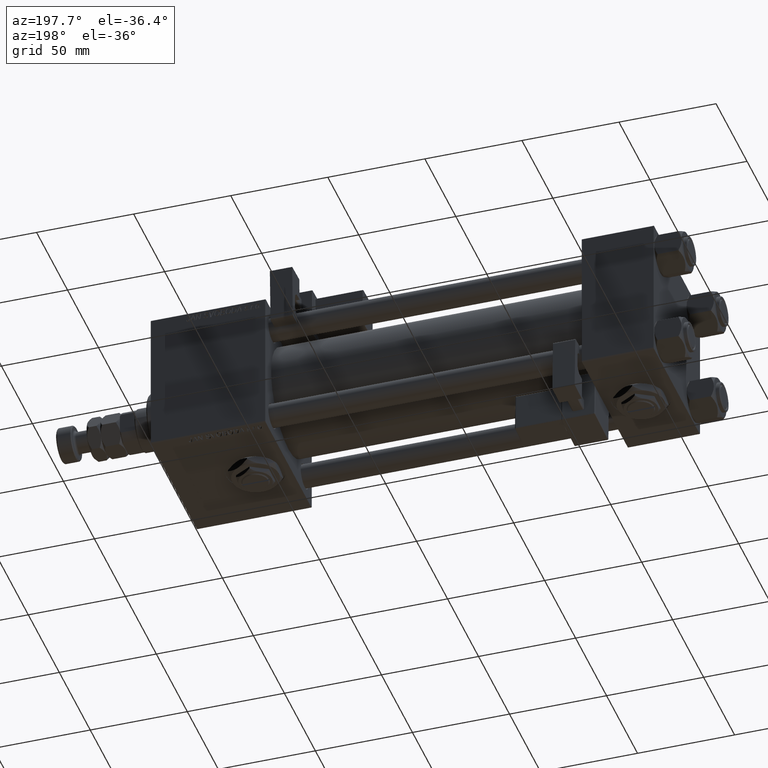
[diagram: clean part render]
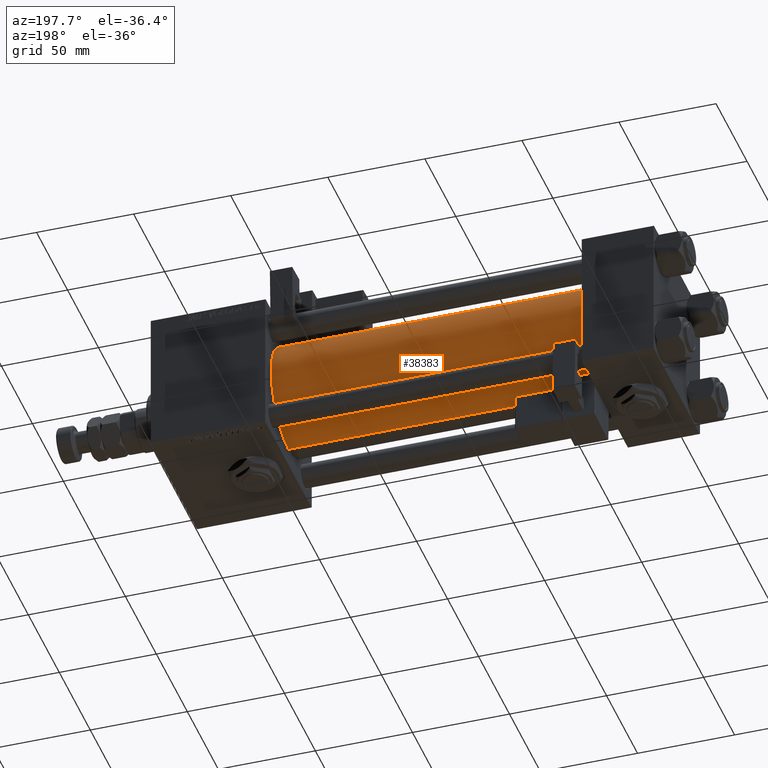
[diagram: same view with one face highlighted and labeled with its STEP entity id]
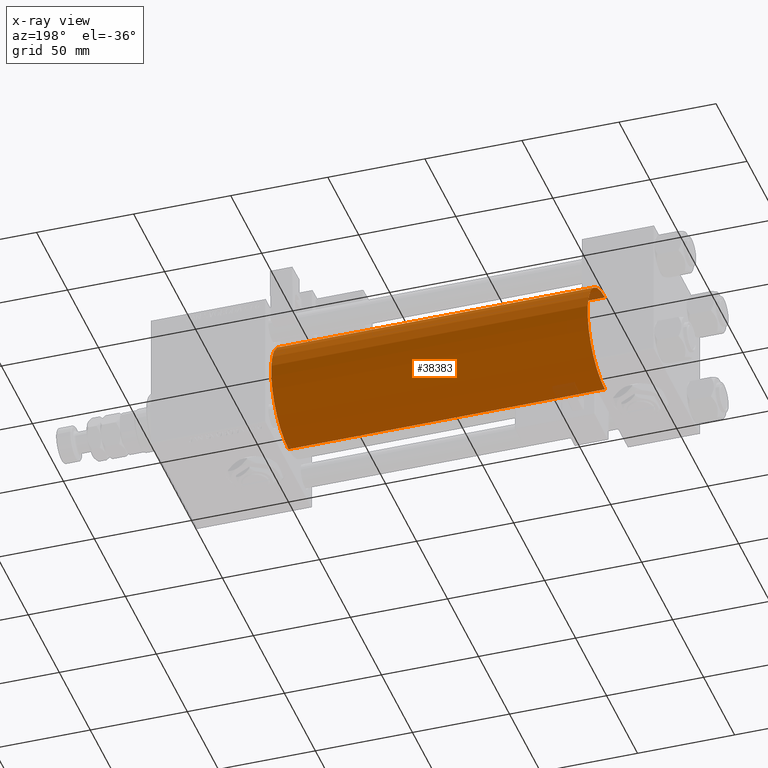
[diagram: x-ray of the same camera — body ghosted, the highlighted face saturated]
A machine part, auxiliary view. The second image highlights one B-rep face of the part: STEP entity #38383.
The next image is the same camera in x-ray: the body ghosted, the highlighted face saturated — about 1% of this face is hidden behind the body in this view.
In plain terms, the highlighted cylindrical surface (partial cylindrical patch) has radius 28 mm, axis along (-1, -0, -0).
Its self-contained STEP definition (entity closure, byte-faithful):
#398 = CARTESIAN_POINT ( 'NONE',  ( 200.0000000000000000, -2.602085213965210642E-15, 28.00000000000000000 ) ) ;
#3461 = VECTOR ( 'NONE', #13063, 1000.000000000000000 ) ;
#4946 = ORIENTED_EDGE ( 'NONE', *, *, #30645, .F. ) ;
#5123 = DIRECTION ( 'NONE',  ( -1.000000000000000000, -0.000000000000000000, -0.000000000000000000 ) ) ;
#6062 = EDGE_CURVE ( 'NONE', #31333, #9803, #8519, .T. ) ;
#6454 = DIRECTION ( 'NONE',  ( -1.000000000000000000, -0.000000000000000000, -0.000000000000000000 ) ) ;
#7013 = CARTESIAN_POINT ( 'NONE',  ( 37.00000000000000711, -2.602085213965210642E-15, 28.00000000000000000 ) ) ;
#7200 = CARTESIAN_POINT ( 'NONE',  ( 37.00000000000000711, -2.602085213965210642E-15, 0.000000000000000000 ) ) ;
#8519 = LINE ( 'NONE', #43209, #3461 ) ;
#9289 = EDGE_CURVE ( 'NONE', #29853, #49390, #23002, .T. ) ;
#9803 = VERTEX_POINT ( 'NONE', #7013 ) ;
#9861 = CARTESIAN_POINT ( 'NONE',  ( 37.00000000000000711, 8.269258236473784371E-16, -28.00000000000000000 ) ) ;
#9999 = CIRCLE ( 'NONE', #31787, 28.00000000000000000 ) ;
#10406 = CARTESIAN_POINT ( 'NONE',  ( 200.0000000000000000, -2.602085213965210642E-15, 0.000000000000000000 ) ) ;
#10713 = VECTOR ( 'NONE', #5123, 1000.000000000000000 ) ;
#13063 = DIRECTION ( 'NONE',  ( -1.000000000000000000, -0.000000000000000000, -0.000000000000000000 ) ) ;
#15538 = CARTESIAN_POINT ( 'NONE',  ( 200.0000000000000000, -2.602085213965210642E-15, 0.000000000000000000 ) ) ;
#17787 = ORIENTED_EDGE ( 'NONE', *, *, #9289, .T. ) ;
#18149 = EDGE_CURVE ( 'NONE', #49390, #9803, #34698, .T. ) ;
#18630 = DIRECTION ( 'NONE',  ( 0.000000000000000000, 0.000000000000000000, -1.000000000000000000 ) ) ;
#23002 = LINE ( 'NONE', #31538, #10713 ) ;
#25324 = ORIENTED_EDGE ( 'NONE', *, *, #18149, .T. ) ;
#28890 = DIRECTION ( 'NONE',  ( 0.000000000000000000, 0.000000000000000000, 1.000000000000000000 ) ) ;
#29853 = VERTEX_POINT ( 'NONE', #45399 ) ;
#30645 = EDGE_CURVE ( 'NONE', #29853, #31333, #9999, .T. ) ;
#31333 = VERTEX_POINT ( 'NONE', #398 ) ;
#31538 = CARTESIAN_POINT ( 'NONE',  ( 200.0000000000000000, 8.269258236473784371E-16, -28.00000000000000000 ) ) ;
#31787 = AXIS2_PLACEMENT_3D ( 'NONE', #10406, #44836, #18630 ) ;
#32308 = FACE_OUTER_BOUND ( 'NONE', #39914, .T. ) ;
#33825 = AXIS2_PLACEMENT_3D ( 'NONE', #15538, #6454, #28890 ) ;
#33911 = DIRECTION ( 'NONE',  ( 0.000000000000000000, 0.000000000000000000, 1.000000000000000000 ) ) ;
#34409 = ORIENTED_EDGE ( 'NONE', *, *, #6062, .F. ) ;
#34698 = CIRCLE ( 'NONE', #41967, 28.00000000000000000 ) ;
#38383 = ADVANCED_FACE ( 'NONE', ( #32308 ), #41412, .T. ) ;
#39914 = EDGE_LOOP ( 'NONE', ( #4946, #17787, #25324, #34409 ) ) ;
#41412 = CYLINDRICAL_SURFACE ( 'NONE', #33825, 28.00000000000000000 ) ;
#41967 = AXIS2_PLACEMENT_3D ( 'NONE', #7200, #55003, #33911 ) ;
#43209 = CARTESIAN_POINT ( 'NONE',  ( 200.0000000000000000, -2.602085213965210642E-15, 28.00000000000000000 ) ) ;
#44836 = DIRECTION ( 'NONE',  ( 1.000000000000000000, 0.000000000000000000, 0.000000000000000000 ) ) ;
#45399 = CARTESIAN_POINT ( 'NONE',  ( 200.0000000000000000, 8.269258236473784371E-16, -28.00000000000000000 ) ) ;
#49390 = VERTEX_POINT ( 'NONE', #9861 ) ;
#55003 = DIRECTION ( 'NONE',  ( 1.000000000000000000, -0.000000000000000000, 0.000000000000000000 ) ) ;